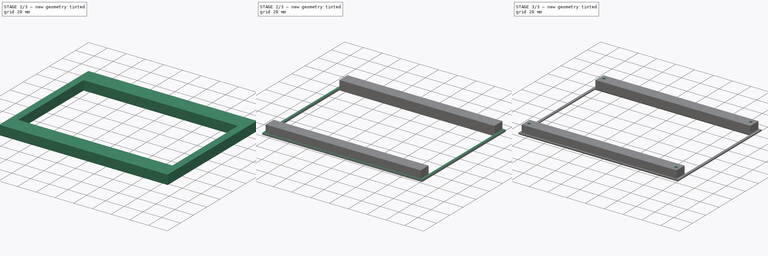
[diagram: build sequence overview — one tinted view per stage of 3, left to right]
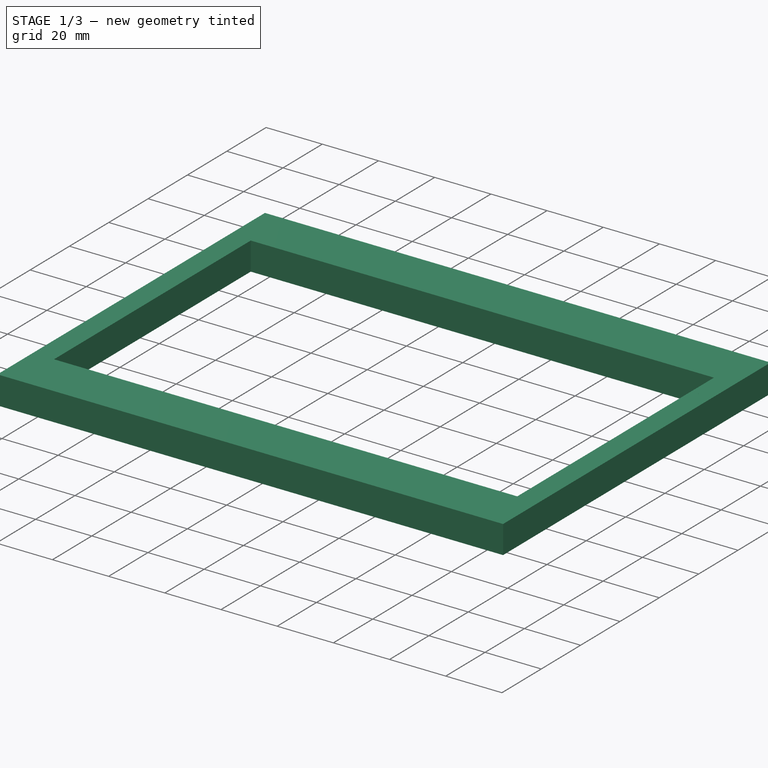
[diagram: stage 1 of 3 — iso view after this stage's code; geometry added in this stage tinted green]
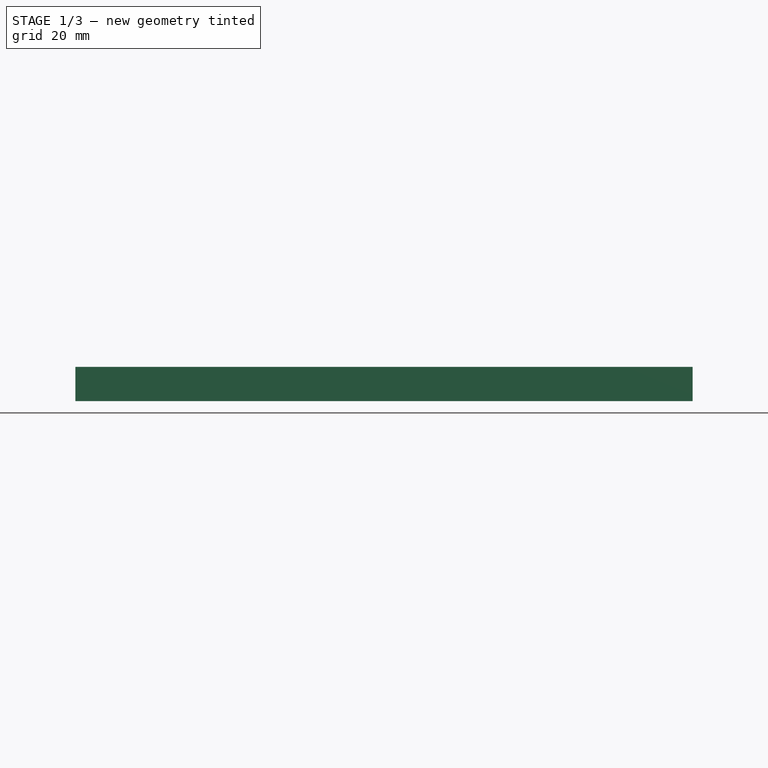
[diagram: stage 1 of 3 — front view after this stage's code; geometry added in this stage tinted green]
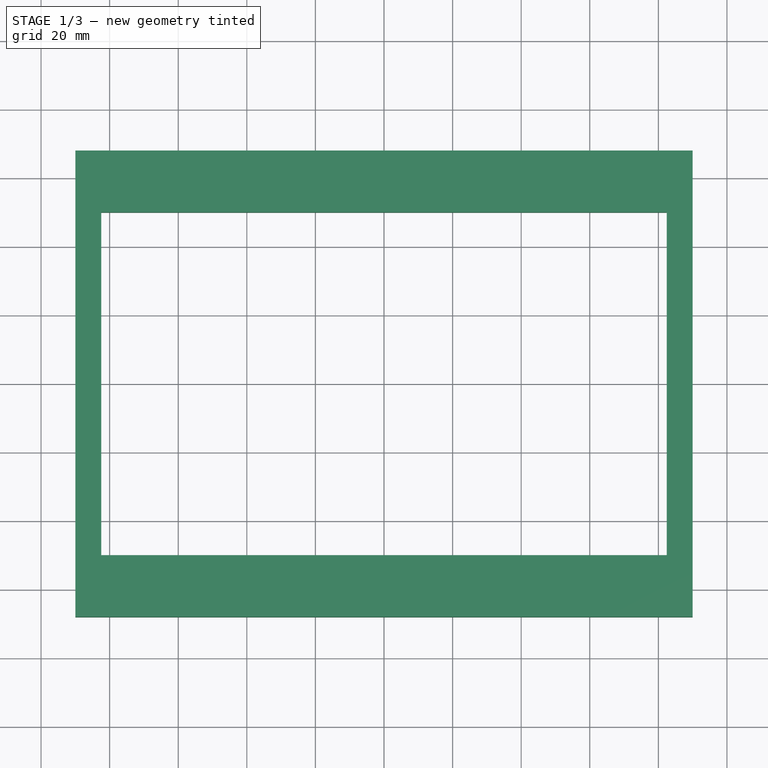
[diagram: stage 1 of 3 — top view after this stage's code; geometry added in this stage tinted green]
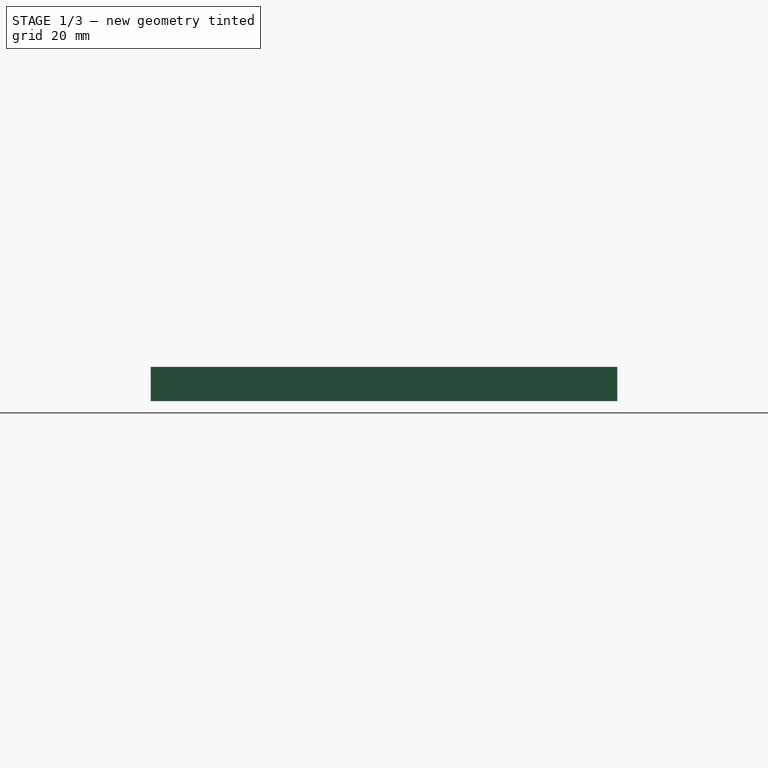
[diagram: stage 1 of 3 — right view after this stage's code; geometry added in this stage tinted green]
FCSTD DOCUMENT  (FreeCAD 0.20R25742 (Git))
Label: LCD_Bezel
License: All rights reserved
LicenseURL: http://en.wikipedia.org/wiki/All_rights_reserved
objects: Sketcher::SketchObject×3, PartDesign::Pad×2, PartDesign::Body×2, PartDesign::Boolean×1, PartDesign::Pocket×1, PartDesign::Chamfer×1
note: 14 computed .brp shape members not serialized (recipe doc carries the construction recipe); baked Part::Feature solids carry a one-line shape summary decoded from their .brp

FEATURE [Sketcher::SketchObject] Sketch
  FullyConstrained = true
  MapMode = 5
  Support = -> [XY_Plane]
  sketch-geometry (8):
    g0: LineSegment StartX=-82.5 StartY=50 StartZ=0 EndX=82.5 EndY=50 EndZ=0
    g1: LineSegment StartX=82.5 StartY=50 StartZ=0 EndX=82.5 EndY=-50 EndZ=0
    g2: LineSegment StartX=82.5 StartY=-50 StartZ=0 EndX=-82.5 EndY=-50 EndZ=0
    g3: LineSegment StartX=-82.5 StartY=-50 StartZ=0 EndX=-82.5 EndY=50 EndZ=0
    g4: LineSegment StartX=-85 StartY=63.5 StartZ=0 EndX=85 EndY=63.5 EndZ=0
    g5: LineSegment StartX=85 StartY=63.5 StartZ=0 EndX=85 EndY=-63.5 EndZ=0
    g6: LineSegment StartX=85 StartY=-63.5 StartZ=0 EndX=-85 EndY=-63.5 EndZ=0
    g7: LineSegment StartX=-85 StartY=-63.5 StartZ=0 EndX=-85 EndY=63.5 EndZ=0
  constraints (22):
    c: Coincident(g0,g1)
    c: Coincident(g1,g2)
    c: Coincident(g2,g3)
    c: Coincident(g3,g0)
    c: Horizontal(g0)
    c: Horizontal(g2)
    c: Vertical(g1)
    c: Vertical(g3)
    c: Coincident(g4,g5)
    c: Coincident(g5,g6)
    c: Coincident(g6,g7)
    c: Coincident(g7,g4)
    c: Horizontal(g4)
    c: Horizontal(g6)
    c: Vertical(g5)
    c: Vertical(g7)
    c: Symmetric(g5,g4,g-1)
    c: Symmetric(g0,g1,g-1)
    c: DistanceX(g4,g4) = 170
    c: DistanceY(g7,g7) = 127
    c: DistanceX(g0,g0) = 165
    c: DistanceY(g3,g3) = 100
FEATURE [PartDesign::Pad] Pad
  Direction = (0,0,1)
  Length = 10
  Length2 = 100
  Profile = -> Sketch
  Type = 0
FEATURE [Sketcher::SketchObject] Sketch001
  FullyConstrained = true
  MapMode = 5
  Support = -> [XY_Plane001]
  sketch-geometry (8):
    g0: LineSegment StartX=-82.45 StartY=62.135 StartZ=0 EndX=82.45 EndY=62.135 EndZ=0
    g1: LineSegment StartX=82.45 StartY=62.135 StartZ=0 EndX=82.45 EndY=-62.135 EndZ=0
    g2: LineSegment StartX=82.45 StartY=-62.135 StartZ=0 EndX=-82.45 EndY=-62.135 EndZ=0
    g3: LineSegment StartX=-82.45 StartY=-62.135 StartZ=0 EndX=-82.45 EndY=62.135 EndZ=0
    g4: LineSegment StartX=-90 StartY=68 StartZ=0 EndX=90 EndY=68 EndZ=0
    g5: LineSegment StartX=90 StartY=68 StartZ=0 EndX=90 EndY=-68 EndZ=0
    g6: LineSegment StartX=90 StartY=-68 StartZ=0 EndX=-90 EndY=-68 EndZ=0
    g7: LineSegment StartX=-90 StartY=-68 StartZ=0 EndX=-90 EndY=68 EndZ=0
  constraints (22):
    c: Coincident(g0,g1)
    c: Coincident(g1,g2)
    c: Coincident(g2,g3)
    c: Coincident(g3,g0)
    c: Horizontal(g0)
    c: Horizontal(g2)
    c: Vertical(g1)
    c: Vertical(g3)
    c: Coincident(g4,g5)
    c: Coincident(g5,g6)
    c: Coincident(g6,g7)
    c: Coincident(g7,g4)
    c: Horizontal(g4)
    c: Horizontal(g6)
    c: Vertical(g5)
    c: Vertical(g7)
    c: Symmetric(g5,g4,g-1)
    c: Symmetric(g0,g1,g-1)
    c: DistanceX(g0,g0) = 164.9
    c: DistanceY(g3,g3) = 124.27
    c: DistanceX(g4,g4) = 180
    c: DistanceY(g7,g7) = 136
FEATURE [PartDesign::Pad] Pad001
  Direction = (0,0,1)
  Length = 10
  Length2 = 100
  Profile = -> Sketch001
  Type = 0
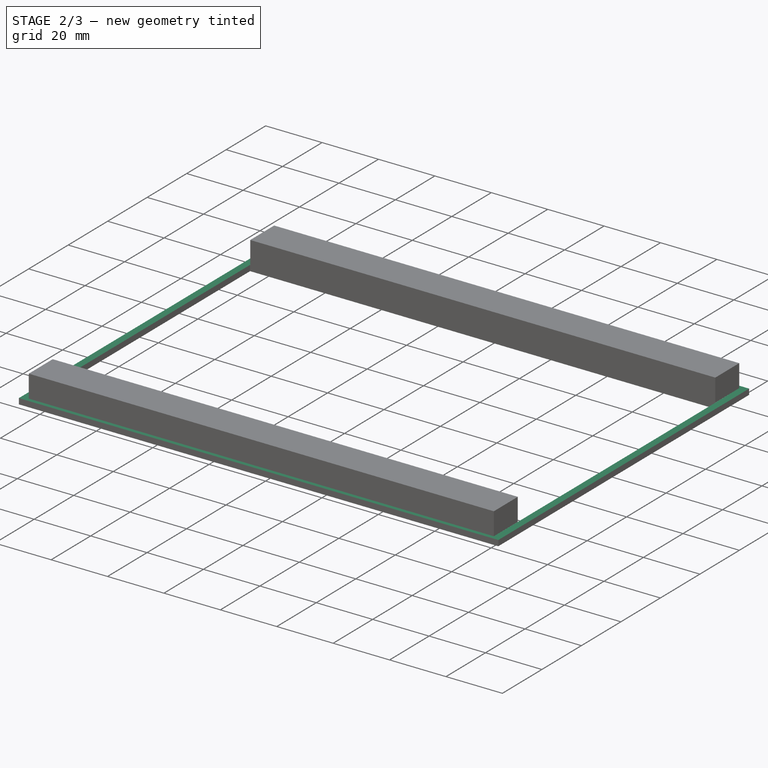
[diagram: stage 2 of 3 — iso view after this stage's code; geometry added in this stage tinted green]
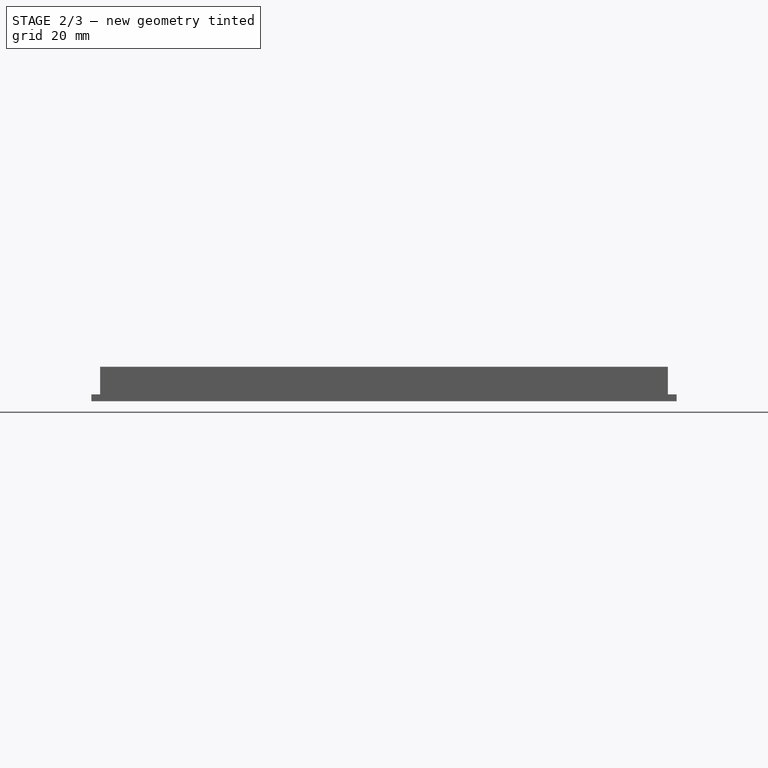
[diagram: stage 2 of 3 — front view after this stage's code; geometry added in this stage tinted green]
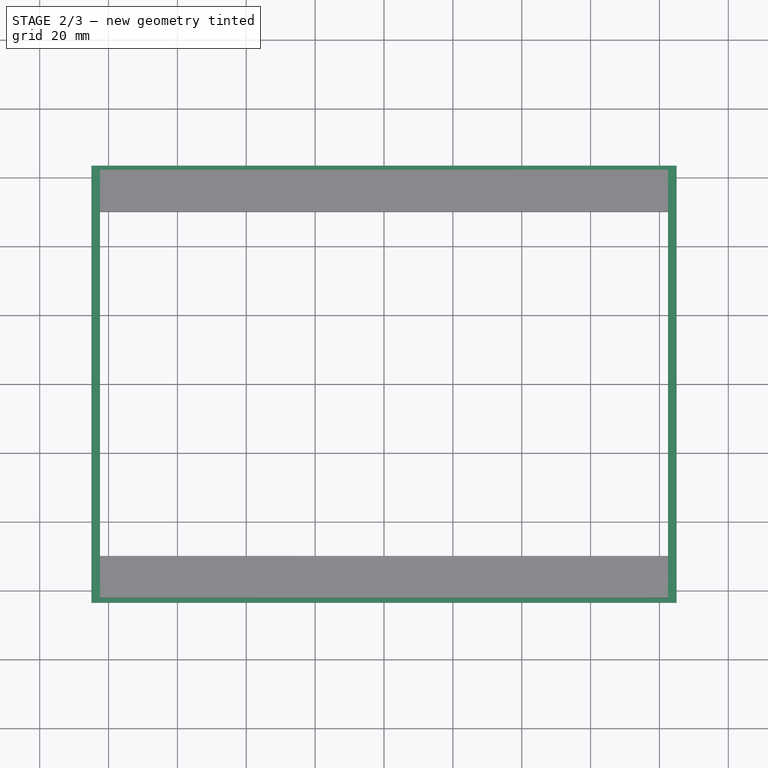
[diagram: stage 2 of 3 — top view after this stage's code; geometry added in this stage tinted green]
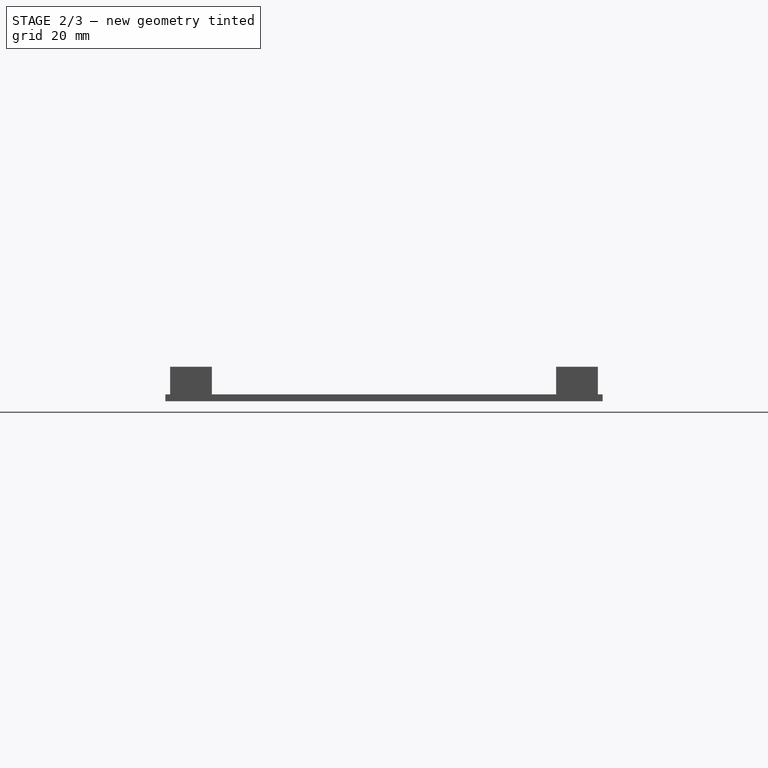
[diagram: stage 2 of 3 — right view after this stage's code; geometry added in this stage tinted green]
FEATURE [PartDesign::Body] Body001
  Group = -> [Sketch001,Pad001]
  Origin = -> Origin001
  Placement = pos=(0,0,2) rot=(0,0,1;0rad)
  Tip = -> Pad001
FEATURE [PartDesign::Boolean] Boolean
  BaseFeature = -> Pad
  Group = -> [Body001]
  Type = 1
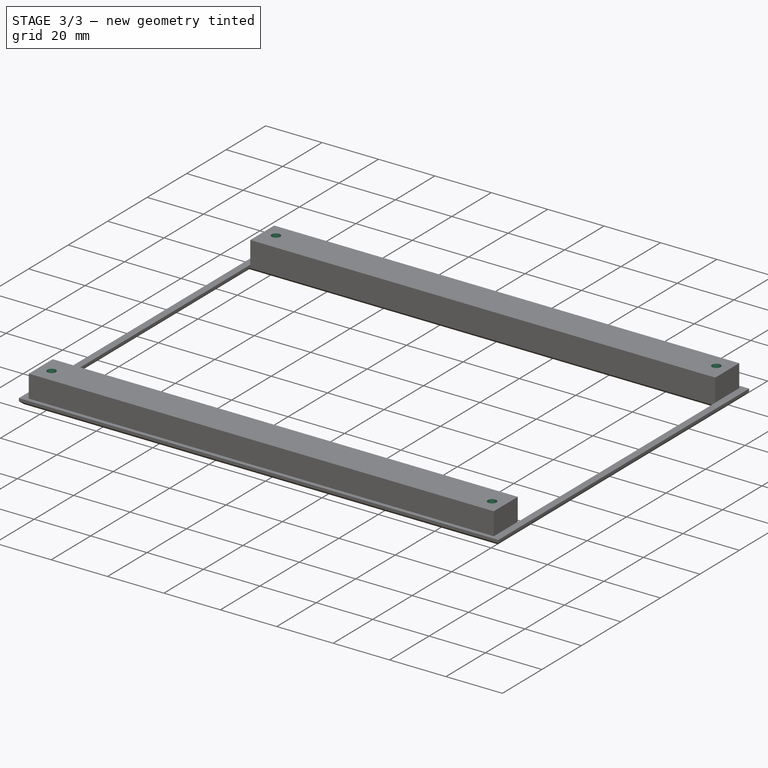
[diagram: stage 3 of 3 — iso view after this stage's code; geometry added in this stage tinted green]
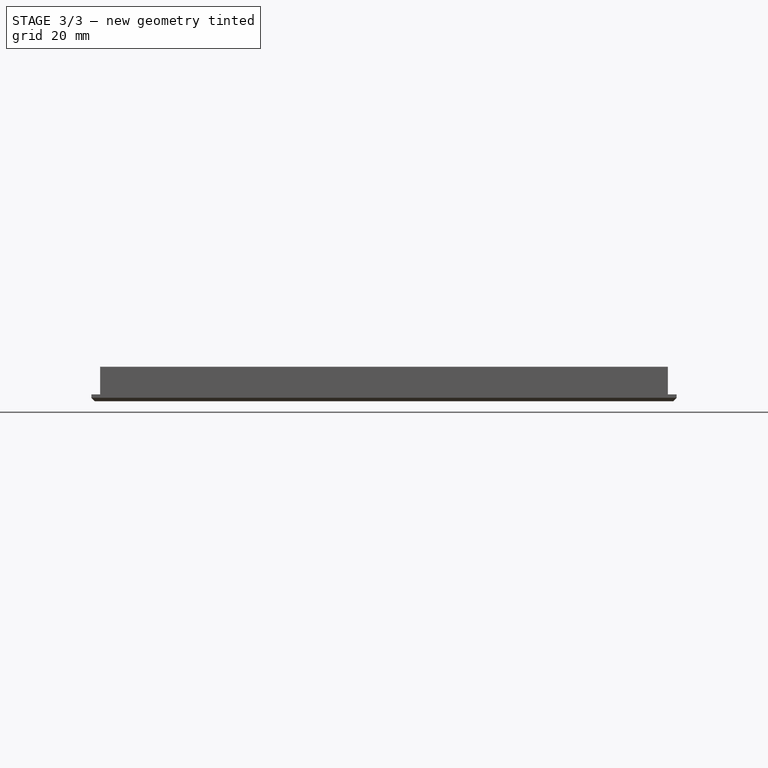
[diagram: stage 3 of 3 — front view after this stage's code; geometry added in this stage tinted green]
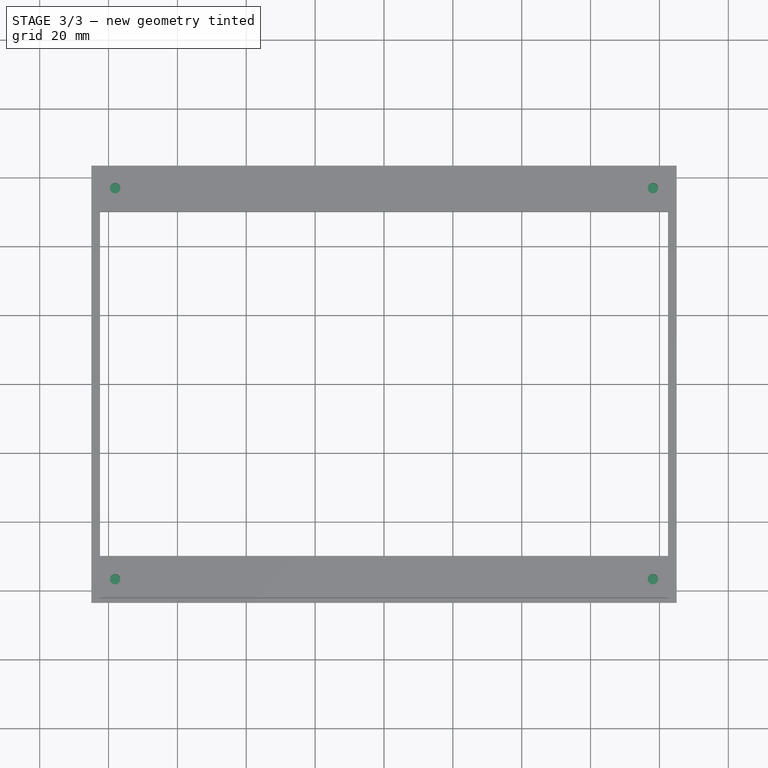
[diagram: stage 3 of 3 — top view after this stage's code; geometry added in this stage tinted green]
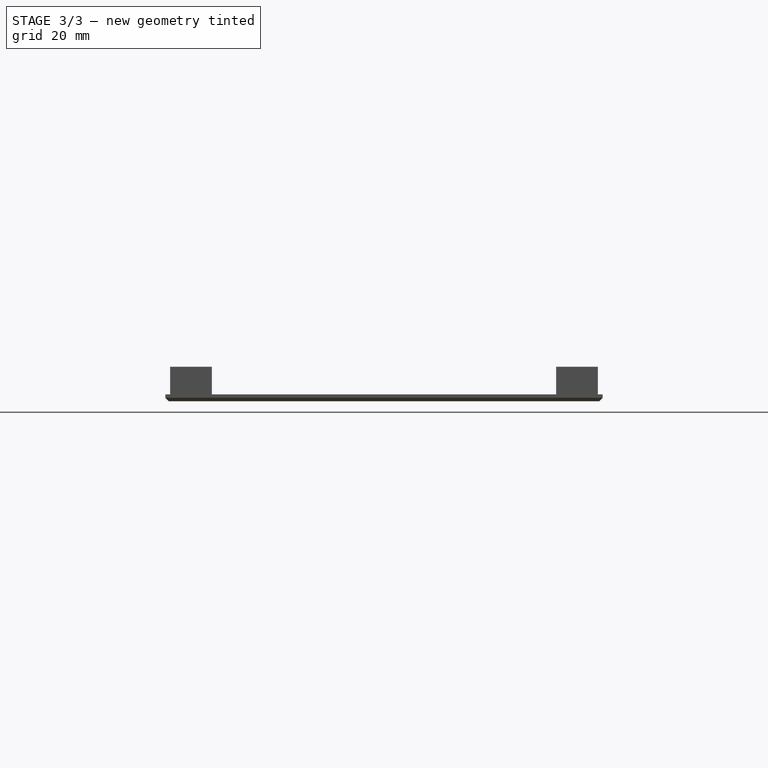
[diagram: stage 3 of 3 — right view after this stage's code; geometry added in this stage tinted green]
FEATURE [Sketcher::SketchObject] Sketch002
  FullyConstrained = true
  MapMode = 5
  Placement = pos=(0,0,10) rot=(0,0,1;0rad)
  Support = -> [Boolean]
  sketch-geometry (4):
    g0: Circle CenterX=-78.09 CenterY=56.795 CenterZ=0 NormalX=0 NormalY=0 NormalZ=1 AngleXU=0 Radius=1.5
    g1: Circle CenterX=78.09 CenterY=56.795 CenterZ=0 NormalX=0 NormalY=0 NormalZ=1 AngleXU=0 Radius=1.5
    g2: Circle CenterX=78.09 CenterY=-56.795 CenterZ=0 NormalX=0 NormalY=0 NormalZ=1 AngleXU=0 Radius=1.5
    g3: Circle CenterX=-78.09 CenterY=-56.795 CenterZ=0 NormalX=0 NormalY=0 NormalZ=1 AngleXU=0 Radius=1.5
  constraints (11):
    c: Vertical(g0,g3)
    c: Horizontal(g0,g1)
    c: Vertical(g1,g2)
    c: Horizontal(g2,g3)
    c: Diameter(g0) = 3
    c: Equal(g0,g3)
    c: Equal(g3,g2)
    c: Equal(g2,g1)
    c: DistanceX(g0,g1) = 156.18
    c: DistanceY(g3,g0) = 113.59
    c: Symmetric(g0,g2,g-1)
FEATURE [PartDesign::Pocket] Pocket
  BaseFeature = -> Boolean
  Length = 7
  Length2 = 100
  Profile = -> Sketch002
  Type = 0
FEATURE [PartDesign::Chamfer] Chamfer
  Angle = 45
  Base = -> Pocket [Edge10,Edge9,Edge6,Edge5,Edge1,Edge7,Edge11,Edge8]
  BaseFeature = -> Pocket
  ChamferType = 0
  FlipDirection = false
  Size = 1
  Size2 = 1
  SupportTransform = false
FEATURE [PartDesign::Body] Body  label="Bezel"
  Group = -> [Sketch,Pad,Boolean,Sketch002,Pocket,Chamfer]
  Origin = -> Origin
  Tip = -> Chamfer
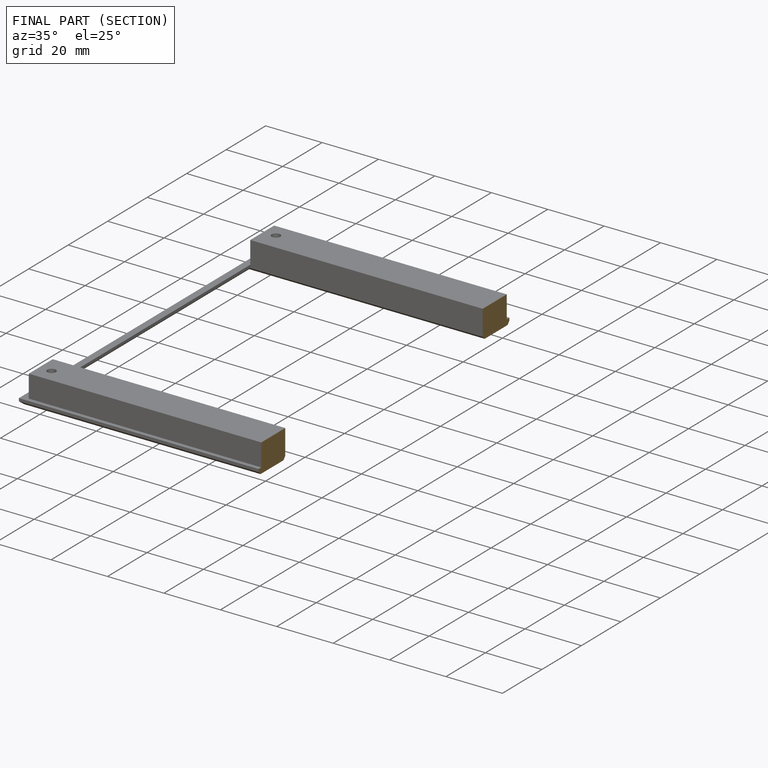
[diagram: finished part — half-section view (interior)]
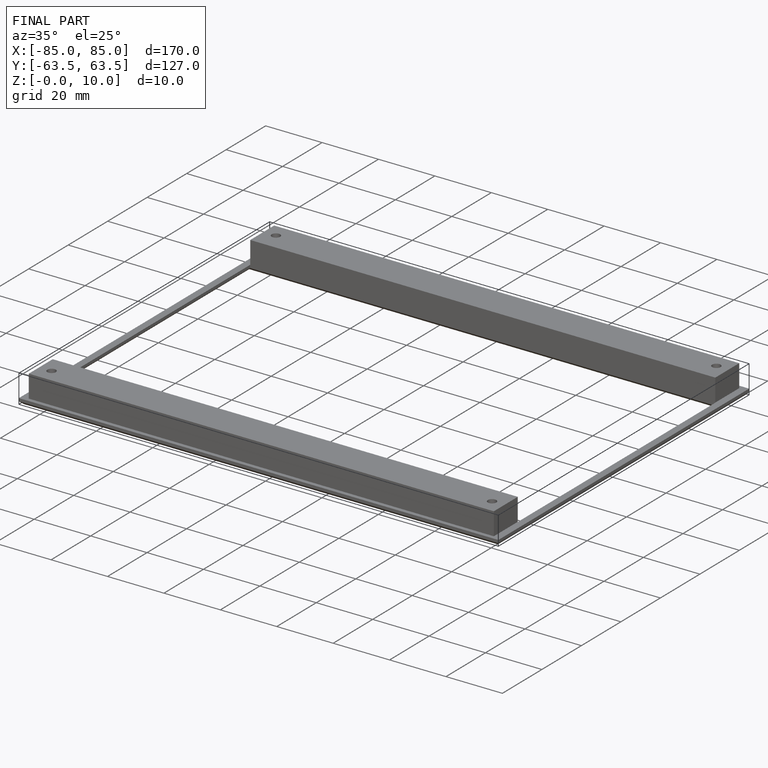
[diagram: finished part — iso view with bounding-box wireframe]
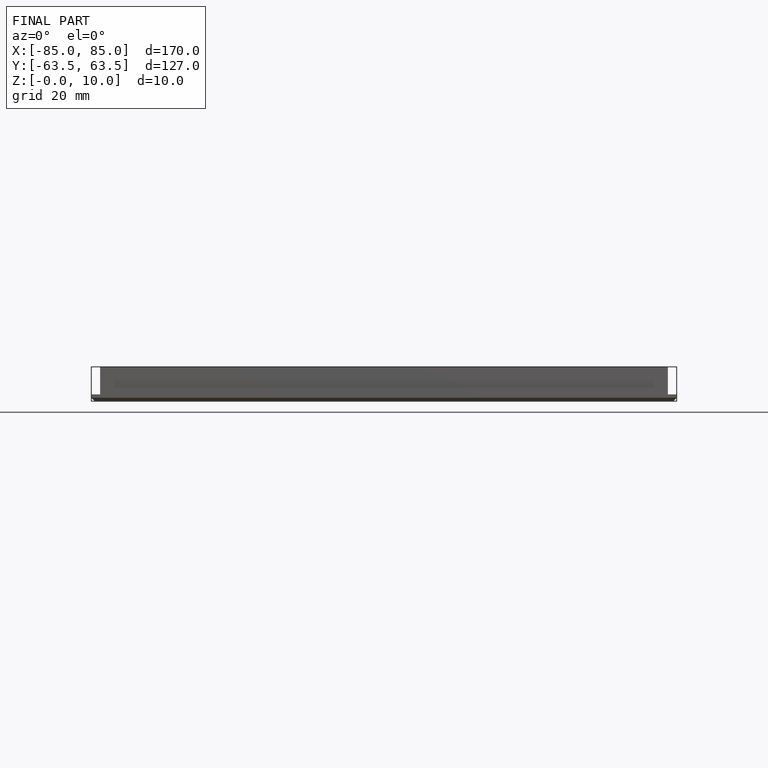
[diagram: finished part — front view with bounding-box wireframe]
